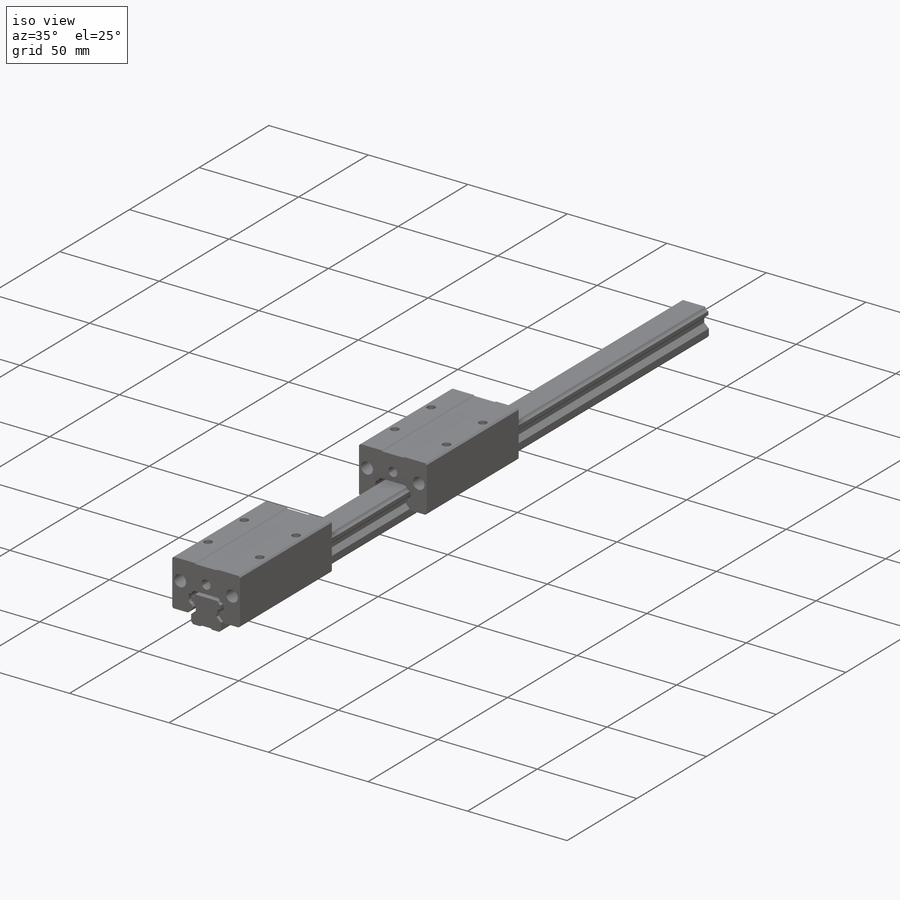
[diagram: iso view]
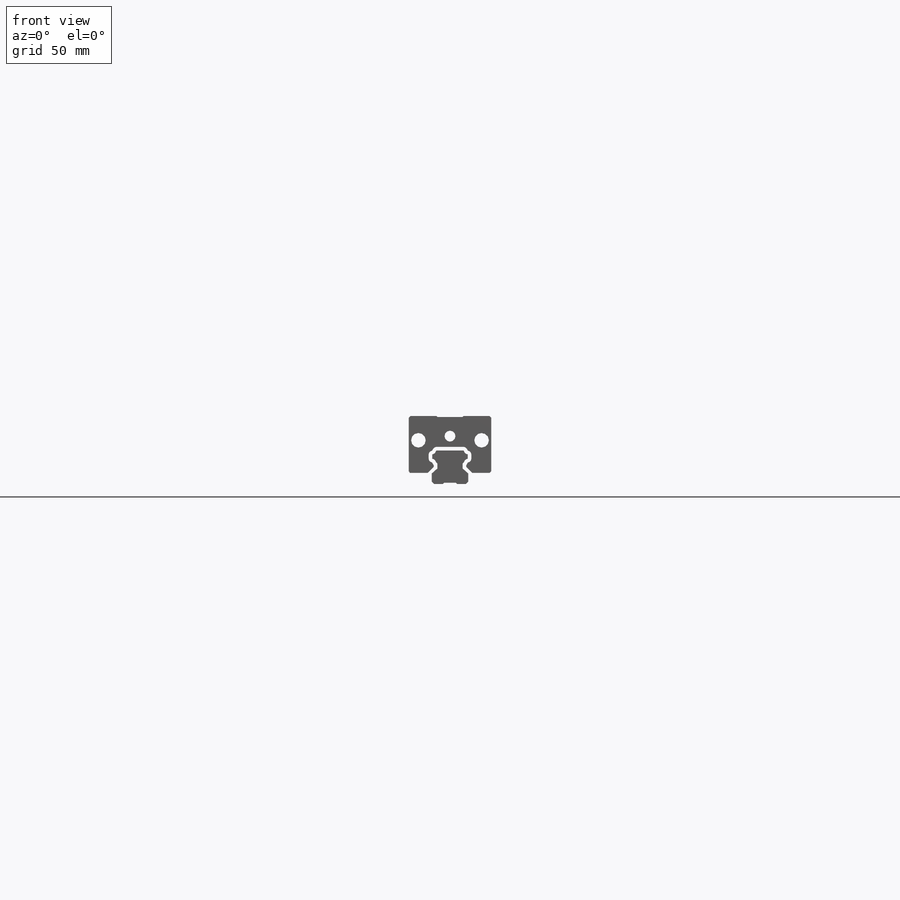
[diagram: front view]
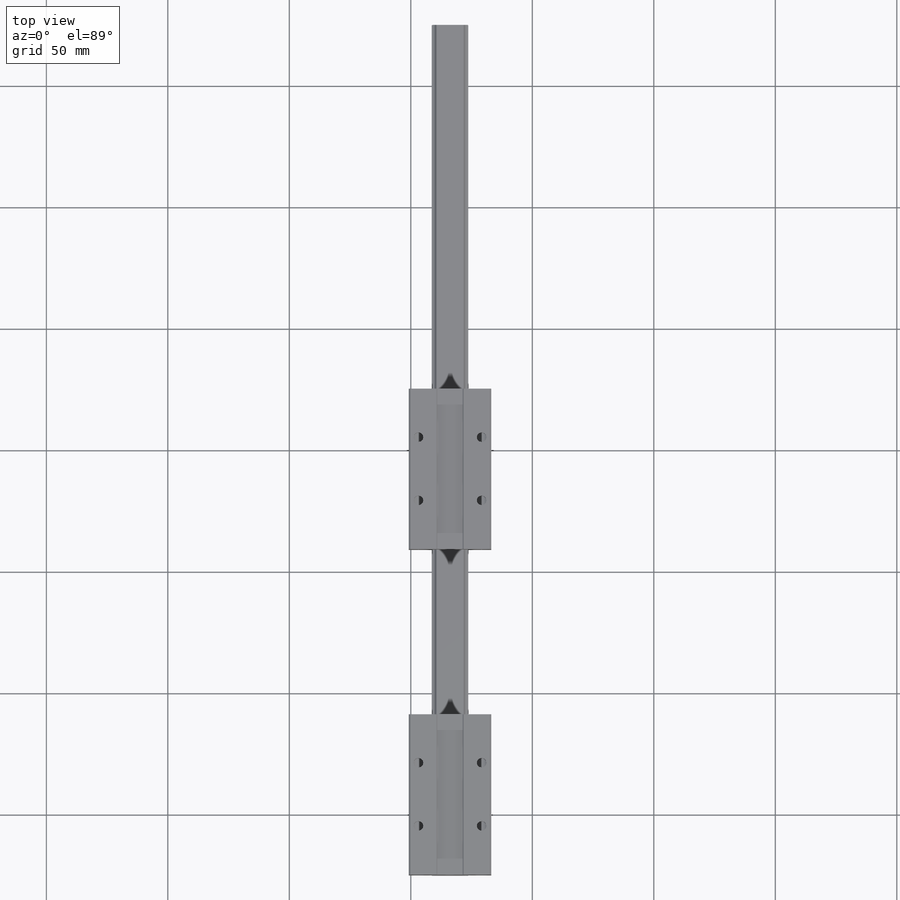
[diagram: top view]
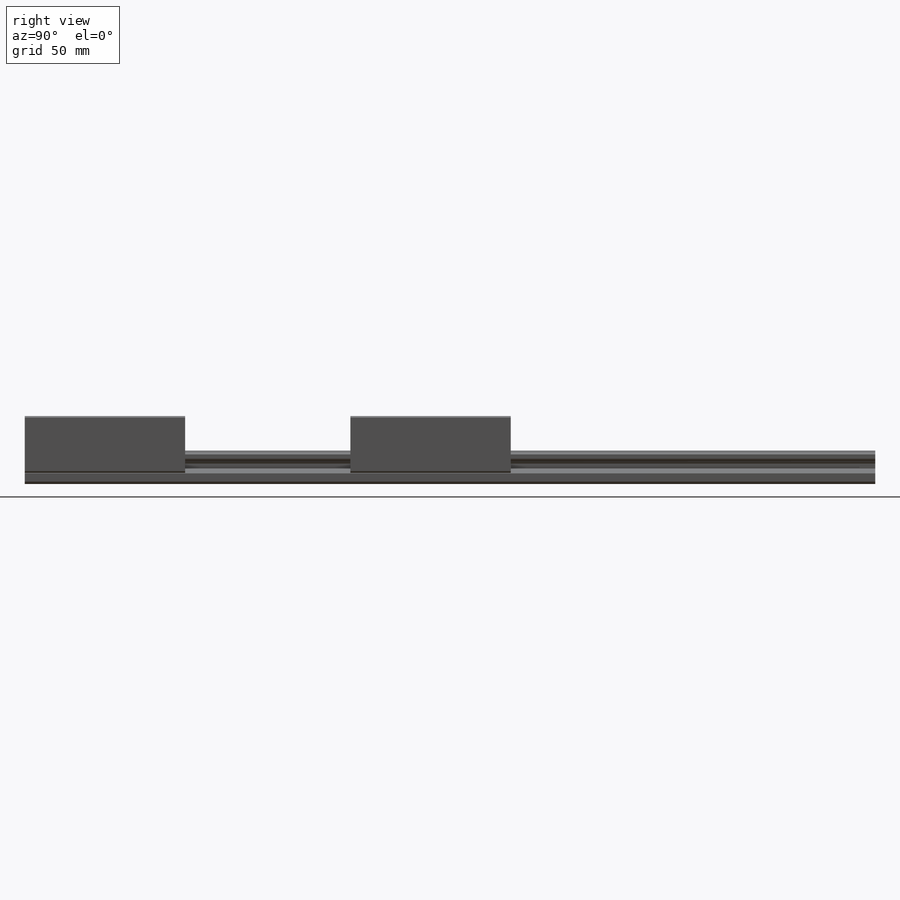
[diagram: right view]
SOLIDWORKS PART (.sldprt)
format: sldprt  version: not decoded by parser v0  size: 693,760 bytes
history: native  units: mm
features: sketch x4, extrude x2, move_body x2, material x1, cut_extrude x1 (+13 scaffold rows collapsed)
feature tree (23):
  scaffold x13  (default folders/planes/origin — collapsed)
  material  "7079 Alloy"
  sketch  "Sketch1"  dims[D1=15.0mm]
  extrude  "Extrude2"  Depth=350mm
  extrude  "Extrude3"  [1 undecoded]
  sketch  "Sketch1<4>"  dims[D1=66.0mm]
  sketch  "Sketch2"  dims[D1=26.0mm]
  cut_extrude  "Cut-Extrude1"  Depth=10mm
  move_body  "Body-Move/Copy2"
  move_body  "Body-Move/Copy4"
  sketch  "Sketch3"
decode coverage: 5 of 9 modeling features carry decoded parameters
note: 1 parameter value undecoded
note: suppression state not decoded; provenance and decode notes live in map.json
